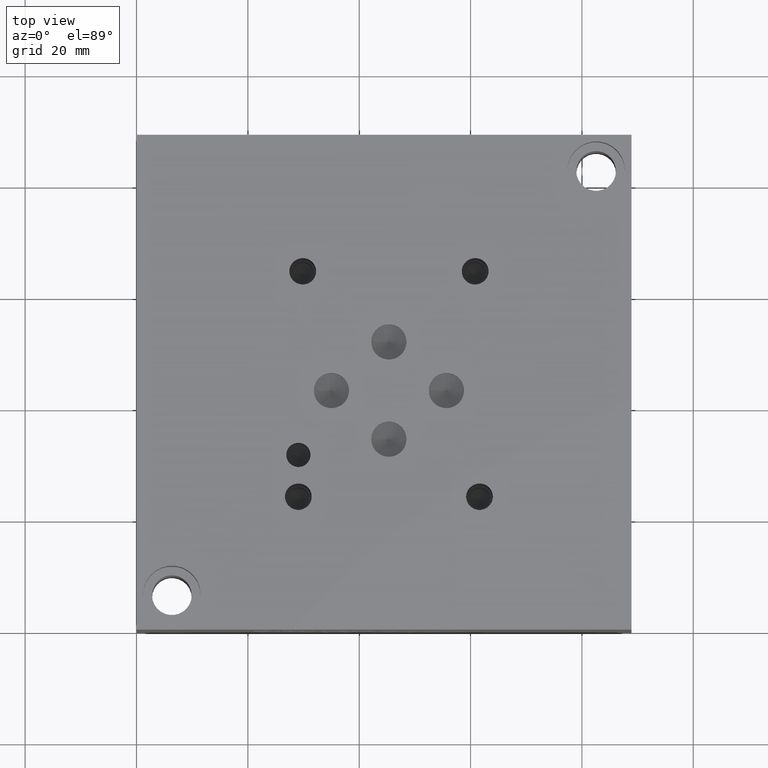
[diagram: clean part render]
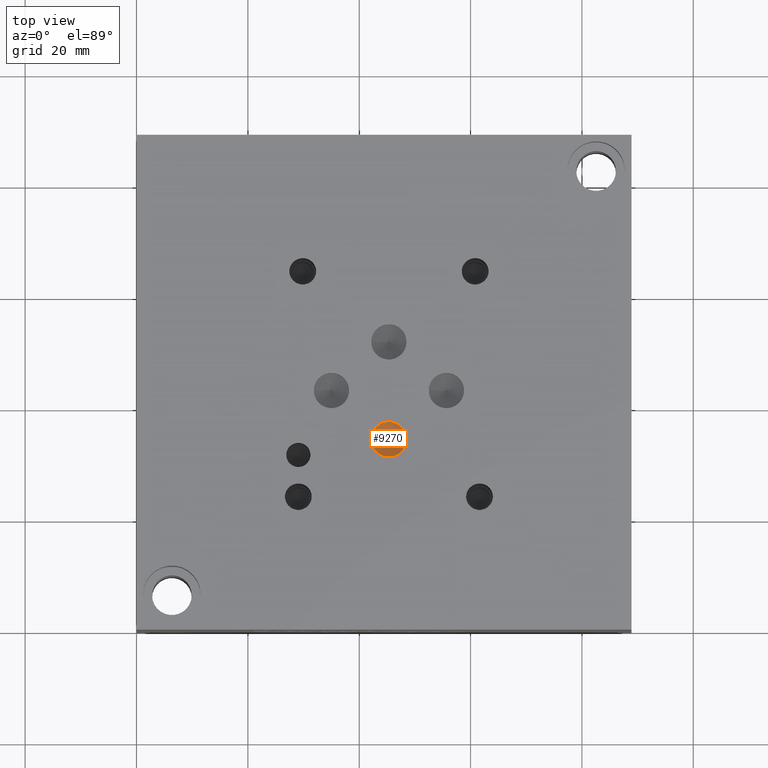
[diagram: same view with one face highlighted and labeled with its STEP entity id]
A machine part, top view. The second image highlights one B-rep face of the part: STEP entity #9270.
In plain terms, the highlighted conical surface has half-angle 60 deg.
Its self-contained STEP definition (entity closure, byte-faithful):
#25=CONICAL_SURFACE('',#9702,1.5875,1.0471975511966);
#217=CIRCLE('',#9703,3.175);
#218=CIRCLE('',#9704,3.175);
#1120=FACE_OUTER_BOUND('',#1646,.T.);
#1646=EDGE_LOOP('',(#8016,#8017,#8018,#8019));
#2544=LINE('',#15875,#3422);
#3422=VECTOR('',#11411,1.5875);
#4271=VERTEX_POINT('',#15871);
#4272=VERTEX_POINT('',#15872);
#4273=VERTEX_POINT('',#15874);
#5537=EDGE_CURVE('',#4271,#4272,#217,.T.);
#5538=EDGE_CURVE('',#4272,#4273,#2544,.T.);
#5539=EDGE_CURVE('',#4272,#4271,#218,.T.);
#8016=ORIENTED_EDGE('',*,*,#5537,.T.);
#8017=ORIENTED_EDGE('',*,*,#5538,.T.);
#8018=ORIENTED_EDGE('',*,*,#5538,.F.);
#8019=ORIENTED_EDGE('',*,*,#5539,.T.);
#9270=ADVANCED_FACE('',(#1120),#25,.F.);
#9702=AXIS2_PLACEMENT_3D('',#15870,#11407,#11408);
#9703=AXIS2_PLACEMENT_3D('',#15873,#11409,#11410);
#9704=AXIS2_PLACEMENT_3D('',#15876,#11412,#11413);
#11407=DIRECTION('center_axis',(0.,0.,1.));
#11408=DIRECTION('ref_axis',(1.,0.,0.));
#11409=DIRECTION('center_axis',(0.,0.,1.));
#11410=DIRECTION('ref_axis',(1.,0.,0.));
#11411=DIRECTION('',(0.866025403784439,1.06057523872491E-16,-0.5));
#11412=DIRECTION('center_axis',(0.,0.,1.));
#11413=DIRECTION('ref_axis',(1.,0.,0.));
#15870=CARTESIAN_POINT('Origin',(45.3136,34.1884,35.3503664476615));
#15871=CARTESIAN_POINT('',(48.4886,34.1884,36.26691));
#15872=CARTESIAN_POINT('',(42.1386,34.1884,36.26691));
#15873=CARTESIAN_POINT('Origin',(45.3136,34.1884,36.26691));
#15874=CARTESIAN_POINT('',(45.3136,34.1884,34.4338228953229));
#15875=CARTESIAN_POINT('',(43.7261,34.1884,35.3503664476615));
#15876=CARTESIAN_POINT('Origin',(45.3136,34.1884,36.26691));